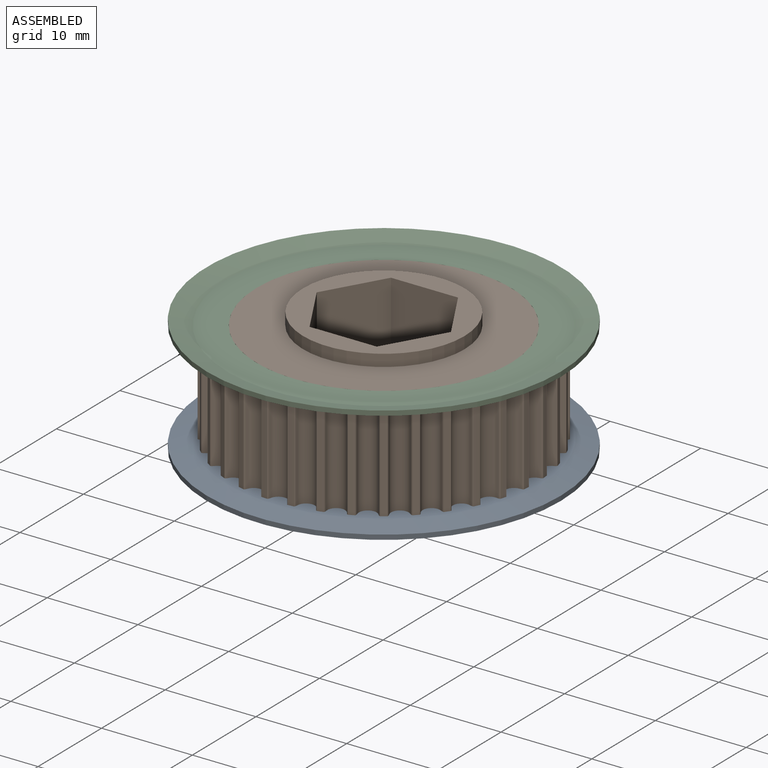
[diagram: assembled view]
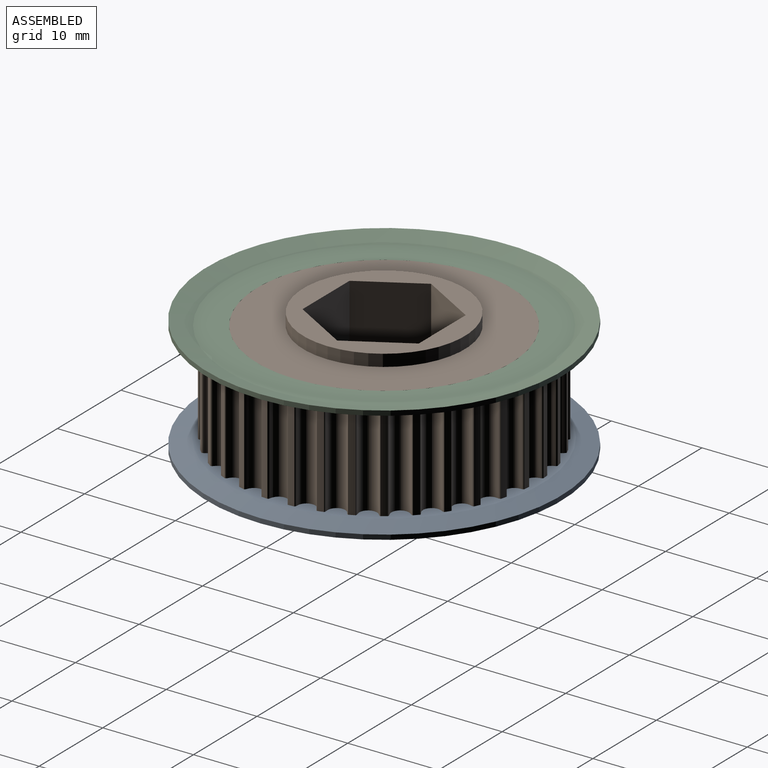
[diagram: assembled view, second angle]
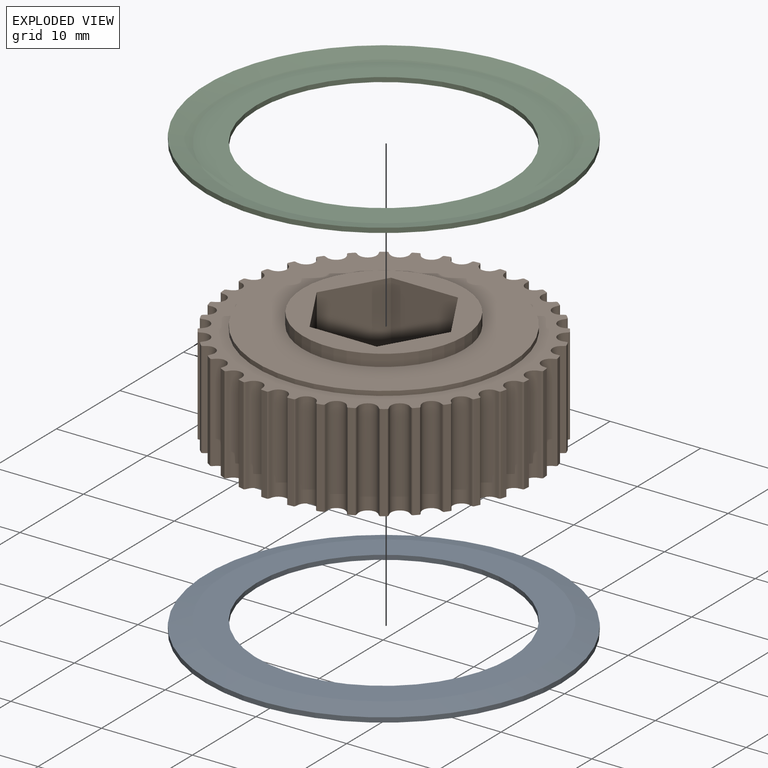
[diagram: exploded view]
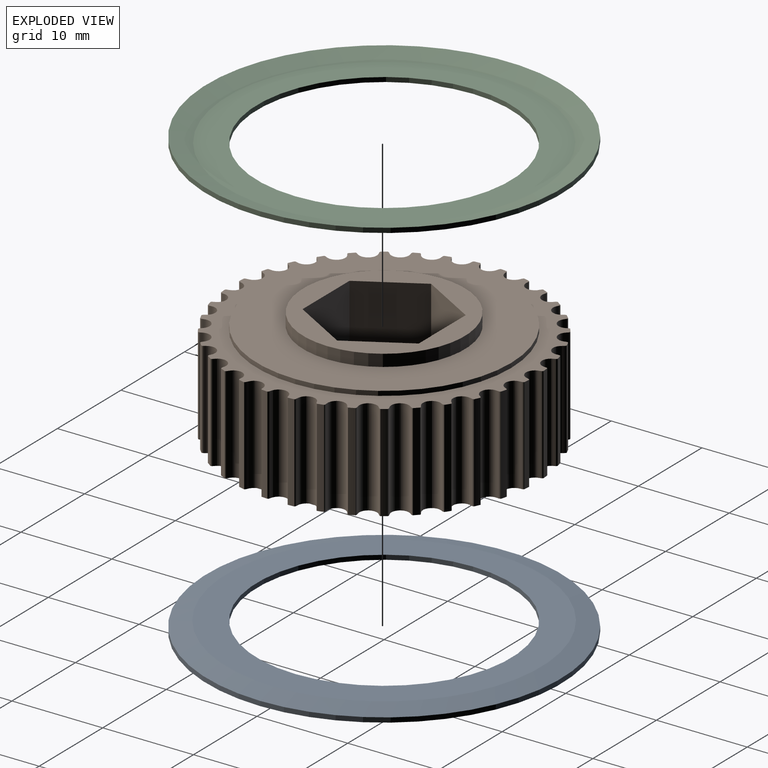
[diagram: exploded view, second angle]
ASSEMBLY  parts=3 mates=2
PART A: 6 faces, bbox 39x39x1.1 mm
  f0: cylinder r=14mm len=28mm, axis (0,0,1), area 44mm2, adj f4,f5
  f1: cone r=17.25mm half-angle=75.1deg, axis (0,0,-1), area 269mm2, adj f2,f4
  f2: cylinder r=19.5mm len=39mm, axis (0,0,1), area 63.5mm2, adj f1,f3
  f3: cone r=19.5mm half-angle=75.1deg, axis (0,0,-1), area 261.4mm2, adj f2,f5
  f4: plane 34.5x34.5mm, normal (0,0,-1), area 318.9mm2, adj f0,f1
  f5: plane 34.63x34.63mm, normal (0,0,1), area 326.3mm2, adj f0,f3
PART B: 232 faces, bbox 33.5x33.5x14.3 mm
  f0: cylinder r=8.89mm len=17.78mm, axis (0,0,-1), area 73.2mm2, adj f27,f231
  f1: cylinder r=8.89mm len=17.78mm, axis (0,0,1), area 73.2mm2, adj f28,f230
  f2: cylinder r=14mm len=28mm, axis (0,0,-1), area 44mm2, adj f229,f231
  f3: cylinder r=14mm len=28mm, axis (0,0,1), area 44mm2, adj f228,f230
  f4: cylinder r=0.3mm len=10.67mm, axis (0,0,-1), area 2.1mm2, adj f216,f217,f228,f229
  f5: cylinder r=0.3mm len=10.67mm, axis (0,0,-1), area 2.1mm2, adj f211,f212,f228,f229
  f6: cylinder r=0.3mm len=10.67mm, axis (0,0,-1), area 2.1mm2, adj f160,f161,f228,f229
  f7: cylinder r=0.3mm len=10.67mm, axis (0,0,-1), area 2.1mm2, adj f155,f156,f228,f229
  f8: cylinder r=0.3mm len=10.67mm, axis (0,0,-1), area 2.1mm2, adj f150,f151,f228,f229
  f9: cylinder r=0.3mm len=10.67mm, axis (0,0,-1), area 2.1mm2, adj f145,f146,f228,f229
  f10: cylinder r=0.97mm len=10.67mm, axis (0,0,-1), area 27.1mm2, adj f124,f125,f228,f229
  f11: cylinder r=0.97mm len=10.67mm, axis (0,0,-1), area 27.1mm2, adj f119,f120,f228,f229
  f12: cylinder r=0.97mm len=10.67mm, axis (0,0,-1), area 27.1mm2, adj f114,f115,f228,f229
  f13: cylinder r=0.97mm len=10.67mm, axis (0,0,-1), area 27.1mm2, adj f109,f110,f228,f229
  f14: cylinder r=0.97mm len=10.67mm, axis (0,0,-1), area 27.1mm2, adj f104,f105,f228,f229
  f15: cylinder r=0.97mm len=10.67mm, axis (0,0,-1), area 27.1mm2, adj f99,f100,f228,f229
  f16: cylinder r=0.97mm len=10.67mm, axis (0,0,-1), area 27.1mm2, adj f94,f95,f228,f229
  f17: cylinder r=0.97mm len=10.67mm, axis (0,0,-1), area 27.1mm2, adj f89,f90,f228,f229
  f18: cylinder r=0.97mm len=10.67mm, axis (0,0,-1), area 27.1mm2, adj f84,f85,f228,f229
  f19: cylinder r=0.97mm len=10.67mm, axis (0,0,-1), area 27.1mm2, adj f79,f80,f228,f229
  f20: cylinder r=0.97mm len=10.67mm, axis (0,0,-1), area 27.1mm2, adj f74,f75,f228,f229
  f21: cylinder r=0.97mm len=10.67mm, axis (0,0,-1), area 27.1mm2, adj f69,f70,f228,f229
  f22: cylinder r=0.97mm len=10.67mm, axis (0,0,-1), area 27.1mm2, adj f64,f65,f228,f229
  f23: cylinder r=0.97mm len=10.67mm, axis (0,0,-1), area 27.1mm2, adj f59,f60,f228,f229
  f24: cylinder r=0.97mm len=10.67mm, axis (0,0,-1), area 27.1mm2, adj f54,f55,f228,f229
  f25: cylinder r=0.3mm len=10.67mm, axis (0,0,-1), area 2.1mm2, adj f33,f34,f228,f229
  f26: cylinder r=0.3mm len=10.67mm, axis (0,0,-1), area 2.1mm2, adj f29,f221,f228,f229
  f27: plane 17.78x17.78mm, normal (0,0,-1), area 106.4mm2, adj f0,f222,f223,f224,f225,f226,f227
  f28: plane 17.78x17.78mm, normal (0,0,1), area 106.4mm2, adj f1,f222,f223,f224,f225,f226,f227
  f29: cylinder r=16.8mm len=10.67mm, axis (0,0,-1), area 7.3mm2, adj f26,f30,f228,f229
  f30: cylinder r=0.3mm len=10.67mm, axis (0,0,-1), area 2.1mm2, adj f29,f31,f228,f229
  f31: cylinder r=11.43mm len=10.67mm, axis (0,0,-1), area 2.8mm2, adj f30,f32,f228,f229
  f32: cylinder r=0.97mm len=10.67mm, axis (0,0,-1), area 27.1mm2, adj f31,f33,f228,f229
  f33: cylinder r=11.43mm len=10.67mm, axis (0,0,-1), area 2.8mm2, adj f25,f32,f228,f229
  f34: cylinder r=16.8mm len=10.67mm, axis (0,0,-1), area 7.3mm2, adj f25,f35,f228,f229
  f35: cylinder r=0.3mm len=10.67mm, axis (0,0,-1), area 2.1mm2, adj f34,f36,f228,f229
  f36: cylinder r=11.43mm len=10.67mm, axis (0,0,-1), area 2.8mm2, adj f35,f37,f228,f229
  f37: cylinder r=0.97mm len=10.67mm, axis (0,0,-1), area 27.1mm2, adj f36,f38,f228,f229
  f38: cylinder r=11.43mm len=10.67mm, axis (0,0,-1), area 2.8mm2, adj f37,f39,f228,f229
  f39: cylinder r=0.3mm len=10.67mm, axis (0,0,-1), area 2.1mm2, adj f38,f40,f228,f229
  f40: cylinder r=16.8mm len=10.67mm, axis (0,0,-1), area 7.3mm2, adj f39,f41,f228,f229
  f41: cylinder r=0.3mm len=10.67mm, axis (0,0,-1), area 2.1mm2, adj f40,f42,f228,f229
  f42: cylinder r=11.43mm len=10.67mm, axis (0,0,-1), area 2.8mm2, adj f41,f43,f228,f229
  f43: cylinder r=0.97mm len=10.67mm, axis (0,0,-1), area 27.1mm2, adj f42,f44,f228,f229
  f44: cylinder r=11.43mm len=10.67mm, axis (0,0,-1), area 2.8mm2, adj f43,f45,f228,f229
  f45: cylinder r=0.3mm len=10.67mm, axis (0,0,-1), area 2.1mm2, adj f44,f46,f228,f229
  f46: cylinder r=16.8mm len=10.67mm, axis (0,0,-1), area 7.3mm2, adj f45,f47,f228,f229
  f47: cylinder r=0.3mm len=10.67mm, axis (0,0,-1), area 2.1mm2, adj f46,f48,f228,f229
  f48: cylinder r=11.43mm len=10.67mm, axis (0,0,-1), area 2.8mm2, adj f47,f49,f228,f229
  f49: cylinder r=0.97mm len=10.67mm, axis (0,0,-1), area 27.1mm2, adj f48,f50,f228,f229
  f50: cylinder r=11.43mm len=10.67mm, axis (0,0,-1), area 2.8mm2, adj f49,f51,f228,f229
  f51: cylinder r=0.3mm len=10.67mm, axis (0,0,-1), area 2.1mm2, adj f50,f52,f228,f229
  f52: cylinder r=16.8mm len=10.67mm, axis (0,0,-1), area 7.3mm2, adj f51,f53,f228,f229
  f53: cylinder r=0.3mm len=10.67mm, axis (0,0,-1), area 2.1mm2, adj f52,f54,f228,f229
  f54: cylinder r=11.43mm len=10.67mm, axis (0,0,-1), area 2.8mm2, adj f24,f53,f228,f229
  f55: cylinder r=11.43mm len=10.67mm, axis (0,0,-1), area 2.8mm2, adj f24,f56,f228,f229
  f56: cylinder r=0.3mm len=10.67mm, axis (0,0,-1), area 2.1mm2, adj f55,f57,f228,f229
  f57: cylinder r=16.8mm len=10.67mm, axis (0,0,-1), area 7.3mm2, adj f56,f58,f228,f229
  f58: cylinder r=0.3mm len=10.67mm, axis (0,0,-1), area 2.1mm2, adj f57,f59,f228,f229
  f59: cylinder r=11.43mm len=10.67mm, axis (0,0,-1), area 2.8mm2, adj f23,f58,f228,f229
  f60: cylinder r=11.43mm len=10.67mm, axis (0,0,-1), area 2.8mm2, adj f23,f61,f228,f229
  f61: cylinder r=0.3mm len=10.67mm, axis (0,0,-1), area 2.1mm2, adj f60,f62,f228,f229
  f62: cylinder r=16.8mm len=10.67mm, axis (0,0,-1), area 7.3mm2, adj f61,f63,f228,f229
  f63: cylinder r=0.3mm len=10.67mm, axis (0,0,-1), area 2.1mm2, adj f62,f64,f228,f229
  f64: cylinder r=11.43mm len=10.67mm, axis (0,0,-1), area 2.8mm2, adj f22,f63,f228,f229
  f65: cylinder r=11.43mm len=10.67mm, axis (0,0,-1), area 2.8mm2, adj f22,f66,f228,f229
  f66: cylinder r=0.3mm len=10.67mm, axis (0,0,-1), area 2.1mm2, adj f65,f67,f228,f229
  f67: cylinder r=16.8mm len=10.67mm, axis (0,0,-1), area 7.3mm2, adj f66,f68,f228,f229
  f68: cylinder r=0.3mm len=10.67mm, axis (0,0,-1), area 2.1mm2, adj f67,f69,f228,f229
  f69: cylinder r=11.43mm len=10.67mm, axis (0,0,-1), area 2.8mm2, adj f21,f68,f228,f229
  f70: cylinder r=11.43mm len=10.67mm, axis (0,0,-1), area 2.8mm2, adj f21,f71,f228,f229
  f71: cylinder r=0.3mm len=10.67mm, axis (0,0,-1), area 2.1mm2, adj f70,f72,f228,f229
  f72: cylinder r=16.8mm len=10.67mm, axis (0,0,-1), area 7.3mm2, adj f71,f73,f228,f229
  f73: cylinder r=0.3mm len=10.67mm, axis (0,0,-1), area 2.1mm2, adj f72,f74,f228,f229
  f74: cylinder r=11.43mm len=10.67mm, axis (0,0,-1), area 2.8mm2, adj f20,f73,f228,f229
  f75: cylinder r=11.43mm len=10.67mm, axis (0,0,-1), area 2.8mm2, adj f20,f76,f228,f229
  f76: cylinder r=0.3mm len=10.67mm, axis (0,0,-1), area 2.1mm2, adj f75,f77,f228,f229
  f77: cylinder r=16.8mm len=10.67mm, axis (0,0,-1), area 7.3mm2, adj f76,f78,f228,f229
  f78: cylinder r=0.3mm len=10.67mm, axis (0,0,-1), area 2.1mm2, adj f77,f79,f228,f229
  f79: cylinder r=11.43mm len=10.67mm, axis (0,0,-1), area 2.8mm2, adj f19,f78,f228,f229
  f80: cylinder r=11.43mm len=10.67mm, axis (0,0,-1), area 2.8mm2, adj f19,f81,f228,f229
  f81: cylinder r=0.3mm len=10.67mm, axis (0,0,-1), area 2.1mm2, adj f80,f82,f228,f229
  f82: cylinder r=16.8mm len=10.67mm, axis (0,0,-1), area 7.3mm2, adj f81,f83,f228,f229
  f83: cylinder r=0.3mm len=10.67mm, axis (0,0,-1), area 2.1mm2, adj f82,f84,f228,f229
  f84: cylinder r=11.43mm len=10.67mm, axis (0,0,-1), area 2.8mm2, adj f18,f83,f228,f229
  f85: cylinder r=11.43mm len=10.67mm, axis (0,0,-1), area 2.8mm2, adj f18,f86,f228,f229
  f86: cylinder r=0.3mm len=10.67mm, axis (0,0,-1), area 2.1mm2, adj f85,f87,f228,f229
  f87: cylinder r=16.8mm len=10.67mm, axis (0,0,-1), area 7.3mm2, adj f86,f88,f228,f229
  f88: cylinder r=0.3mm len=10.67mm, axis (0,0,-1), area 2.1mm2, adj f87,f89,f228,f229
  f89: cylinder r=11.43mm len=10.67mm, axis (0,0,-1), area 2.8mm2, adj f17,f88,f228,f229
  f90: cylinder r=11.43mm len=10.67mm, axis (0,0,-1), area 2.8mm2, adj f17,f91,f228,f229
  f91: cylinder r=0.3mm len=10.67mm, axis (0,0,-1), area 2.1mm2, adj f90,f92,f228,f229
  f92: cylinder r=16.8mm len=10.67mm, axis (0,0,-1), area 7.3mm2, adj f91,f93,f228,f229
  f93: cylinder r=0.3mm len=10.67mm, axis (0,0,-1), area 2.1mm2, adj f92,f94,f228,f229
  f94: cylinder r=11.43mm len=10.67mm, axis (0,0,-1), area 2.8mm2, adj f16,f93,f228,f229
  f95: cylinder r=11.43mm len=10.67mm, axis (0,0,-1), area 2.8mm2, adj f16,f96,f228,f229
  f96: cylinder r=0.3mm len=10.67mm, axis (0,0,-1), area 2.1mm2, adj f95,f97,f228,f229
  f97: cylinder r=16.8mm len=10.67mm, axis (0,0,-1), area 7.3mm2, adj f96,f98,f228,f229
  f98: cylinder r=0.3mm len=10.67mm, axis (0,0,-1), area 2.1mm2, adj f97,f99,f228,f229
  f99: cylinder r=11.43mm len=10.67mm, axis (0,0,-1), area 2.8mm2, adj f15,f98,f228,f229
  f100: cylinder r=11.43mm len=10.67mm, axis (0,0,-1), area 2.8mm2, adj f15,f101,f228,f229
  f101: cylinder r=0.3mm len=10.67mm, axis (0,0,-1), area 2.1mm2, adj f100,f102,f228,f229
  f102: cylinder r=16.8mm len=10.67mm, axis (0,0,-1), area 7.3mm2, adj f101,f103,f228,f229
  f103: cylinder r=0.3mm len=10.67mm, axis (0,0,-1), area 2.1mm2, adj f102,f104,f228,f229
  f104: cylinder r=11.43mm len=10.67mm, axis (0,0,-1), area 2.8mm2, adj f14,f103,f228,f229
  f105: cylinder r=11.43mm len=10.67mm, axis (0,0,-1), area 2.8mm2, adj f14,f106,f228,f229
  f106: cylinder r=0.3mm len=10.67mm, axis (0,0,-1), area 2.1mm2, adj f105,f107,f228,f229
  f107: cylinder r=16.8mm len=10.67mm, axis (0,0,-1), area 7.3mm2, adj f106,f108,f228,f229
  f108: cylinder r=0.3mm len=10.67mm, axis (0,0,-1), area 2.1mm2, adj f107,f109,f228,f229
  f109: cylinder r=11.43mm len=10.67mm, axis (0,0,-1), area 2.8mm2, adj f13,f108,f228,f229
  f110: cylinder r=11.43mm len=10.67mm, axis (0,0,-1), area 2.8mm2, adj f13,f111,f228,f229
  f111: cylinder r=0.3mm len=10.67mm, axis (0,0,-1), area 2.1mm2, adj f110,f112,f228,f229
  f112: cylinder r=16.8mm len=10.67mm, axis (0,0,-1), area 7.3mm2, adj f111,f113,f228,f229
  f113: cylinder r=0.3mm len=10.67mm, axis (0,0,-1), area 2.1mm2, adj f112,f114,f228,f229
  f114: cylinder r=11.43mm len=10.67mm, axis (0,0,-1), area 2.8mm2, adj f12,f113,f228,f229
  f115: cylinder r=11.43mm len=10.67mm, axis (0,0,-1), area 2.8mm2, adj f12,f116,f228,f229
  f116: cylinder r=0.3mm len=10.67mm, axis (0,0,-1), area 2.1mm2, adj f115,f117,f228,f229
  f117: cylinder r=16.8mm len=10.67mm, axis (0,0,-1), area 7.3mm2, adj f116,f118,f228,f229
  f118: cylinder r=0.3mm len=10.67mm, axis (0,0,-1), area 2.1mm2, adj f117,f119,f228,f229
  f119: cylinder r=11.43mm len=10.67mm, axis (0,0,-1), area 2.8mm2, adj f11,f118,f228,f229
  f120: cylinder r=11.43mm len=10.67mm, axis (0,0,-1), area 2.8mm2, adj f11,f121,f228,f229
  f121: cylinder r=0.3mm len=10.67mm, axis (0,0,-1), area 2.1mm2, adj f120,f122,f228,f229
  f122: cylinder r=16.8mm len=10.67mm, axis (0,0,-1), area 7.3mm2, adj f121,f123,f228,f229
  f123: cylinder r=0.3mm len=10.67mm, axis (0,0,-1), area 2.1mm2, adj f122,f124,f228,f229
  f124: cylinder r=11.43mm len=10.67mm, axis (0,0,-1), area 2.8mm2, adj f10,f123,f228,f229
  f125: cylinder r=11.43mm len=10.67mm, axis (0,0,-1), area 2.8mm2, adj f10,f126,f228,f229
  f126: cylinder r=0.3mm len=10.67mm, axis (0,0,-1), area 2.1mm2, adj f125,f127,f228,f229
  f127: cylinder r=16.8mm len=10.67mm, axis (0,0,-1), area 7.3mm2, adj f126,f128,f228,f229
  f128: cylinder r=0.3mm len=10.67mm, axis (0,0,-1), area 2.1mm2, adj f127,f129,f228,f229
  f129: cylinder r=11.43mm len=10.67mm, axis (0,0,-1), area 2.8mm2, adj f128,f130,f228,f229
  f130: cylinder r=0.97mm len=10.67mm, axis (0,0,-1), area 27.1mm2, adj f129,f131,f228,f229
  f131: cylinder r=11.43mm len=10.67mm, axis (0,0,-1), area 2.8mm2, adj f130,f132,f228,f229
  f132: cylinder r=0.3mm len=10.67mm, axis (0,0,-1), area 2.1mm2, adj f131,f133,f228,f229
  f133: cylinder r=16.8mm len=10.67mm, axis (0,0,-1), area 7.3mm2, adj f132,f134,f228,f229
  f134: cylinder r=0.3mm len=10.67mm, axis (0,0,-1), area 2.1mm2, adj f133,f135,f228,f229
  f135: cylinder r=11.43mm len=10.67mm, axis (0,0,-1), area 2.8mm2, adj f134,f136,f228,f229
  f136: cylinder r=0.97mm len=10.67mm, axis (0,0,-1), area 27.1mm2, adj f135,f137,f228,f229
  f137: cylinder r=11.43mm len=10.67mm, axis (0,0,-1), area 2.8mm2, adj f136,f138,f228,f229
  f138: cylinder r=0.3mm len=10.67mm, axis (0,0,-1), area 2.1mm2, adj f137,f139,f228,f229
  f139: cylinder r=16.8mm len=10.67mm, axis (0,0,-1), area 7.3mm2, adj f138,f140,f228,f229
  f140: cylinder r=0.3mm len=10.67mm, axis (0,0,-1), area 2.1mm2, adj f139,f141,f228,f229
  f141: cylinder r=11.43mm len=10.67mm, axis (0,0,-1), area 2.8mm2, adj f140,f142,f228,f229
  f142: cylinder r=0.97mm len=10.67mm, axis (0,0,-1), area 27.1mm2, adj f141,f143,f228,f229
  f143: cylinder r=11.43mm len=10.67mm, axis (0,0,-1), area 2.8mm2, adj f142,f144,f228,f229
  f144: cylinder r=0.3mm len=10.67mm, axis (0,0,-1), area 2.1mm2, adj f143,f145,f228,f229
  f145: cylinder r=16.8mm len=10.67mm, axis (0,0,-1), area 7.3mm2, adj f9,f144,f228,f229
  f146: cylinder r=11.43mm len=10.67mm, axis (0,0,-1), area 2.8mm2, adj f9,f147,f228,f229
  f147: cylinder r=0.97mm len=10.67mm, axis (0,0,-1), area 27.1mm2, adj f146,f148,f228,f229
  f148: cylinder r=11.43mm len=10.67mm, axis (0,0,-1), area 2.8mm2, adj f147,f149,f228,f229
  f149: cylinder r=0.3mm len=10.67mm, axis (0,0,-1), area 2.1mm2, adj f148,f150,f228,f229
  f150: cylinder r=16.8mm len=10.67mm, axis (0,0,-1), area 7.3mm2, adj f8,f149,f228,f229
  f151: cylinder r=11.43mm len=10.67mm, axis (0,0,-1), area 2.8mm2, adj f8,f152,f228,f229
  f152: cylinder r=0.97mm len=10.67mm, axis (0,0,-1), area 27.1mm2, adj f151,f153,f228,f229
  f153: cylinder r=11.43mm len=10.67mm, axis (0,0,-1), area 2.8mm2, adj f152,f154,f228,f229
  f154: cylinder r=0.3mm len=10.67mm, axis (0,0,-1), area 2.1mm2, adj f153,f155,f228,f229
  f155: cylinder r=16.8mm len=10.67mm, axis (0,0,-1), area 7.3mm2, adj f7,f154,f228,f229
  f156: cylinder r=11.43mm len=10.67mm, axis (0,0,-1), area 2.8mm2, adj f7,f157,f228,f229
  f157: cylinder r=0.97mm len=10.67mm, axis (0,0,-1), area 27.1mm2, adj f156,f158,f228,f229
  f158: cylinder r=11.43mm len=10.67mm, axis (0,0,-1), area 2.8mm2, adj f157,f159,f228,f229
  f159: cylinder r=0.3mm len=10.67mm, axis (0,0,-1), area 2.1mm2, adj f158,f160,f228,f229
  f160: cylinder r=16.8mm len=10.67mm, axis (0,0,-1), area 7.3mm2, adj f6,f159,f228,f229
  f161: cylinder r=11.43mm len=10.67mm, axis (0,0,-1), area 2.8mm2, adj f6,f162,f228,f229
  f162: cylinder r=0.97mm len=10.67mm, axis (0,0,-1), area 27.1mm2, adj f161,f163,f228,f229
  f163: cylinder r=11.43mm len=10.67mm, axis (0,0,-1), area 2.8mm2, adj f162,f164,f228,f229
  f164: cylinder r=0.3mm len=10.67mm, axis (0,0,-1), area 2.1mm2, adj f163,f165,f228,f229
  f165: cylinder r=16.8mm len=10.67mm, axis (0,0,-1), area 7.3mm2, adj f164,f166,f228,f229
  f166: cylinder r=0.3mm len=10.67mm, axis (0,0,-1), area 2.1mm2, adj f165,f167,f228,f229
  f167: cylinder r=11.43mm len=10.67mm, axis (0,0,-1), area 2.8mm2, adj f166,f168,f228,f229
  f168: cylinder r=0.97mm len=10.67mm, axis (0,0,-1), area 27.1mm2, adj f167,f169,f228,f229
  f169: cylinder r=11.43mm len=10.67mm, axis (0,0,-1), area 2.8mm2, adj f168,f170,f228,f229
  f170: cylinder r=0.3mm len=10.67mm, axis (0,0,-1), area 2.1mm2, adj f169,f171,f228,f229
  f171: cylinder r=16.8mm len=10.67mm, axis (0,0,-1), area 7.3mm2, adj f170,f172,f228,f229
  f172: cylinder r=0.3mm len=10.67mm, axis (0,0,-1), area 2.1mm2, adj f171,f173,f228,f229
  f173: cylinder r=11.43mm len=10.67mm, axis (0,0,-1), area 2.8mm2, adj f172,f174,f228,f229
  f174: cylinder r=0.97mm len=10.67mm, axis (0,0,-1), area 27.1mm2, adj f173,f175,f228,f229
  f175: cylinder r=11.43mm len=10.67mm, axis (0,0,-1), area 2.8mm2, adj f174,f176,f228,f229
  f176: cylinder r=0.3mm len=10.67mm, axis (0,0,-1), area 2.1mm2, adj f175,f177,f228,f229
  f177: cylinder r=16.8mm len=10.67mm, axis (0,0,-1), area 7.3mm2, adj f176,f178,f228,f229
  f178: cylinder r=0.3mm len=10.67mm, axis (0,0,-1), area 2.1mm2, adj f177,f179,f228,f229
  f179: cylinder r=11.43mm len=10.67mm, axis (0,0,-1), area 2.8mm2, adj f178,f180,f228,f229
  f180: cylinder r=0.97mm len=10.67mm, axis (0,0,-1), area 27.1mm2, adj f179,f181,f228,f229
  f181: cylinder r=11.43mm len=10.67mm, axis (0,0,-1), area 2.8mm2, adj f180,f182,f228,f229
  f182: cylinder r=0.3mm len=10.67mm, axis (0,0,-1), area 2.1mm2, adj f181,f183,f228,f229
  f183: cylinder r=16.8mm len=10.67mm, axis (0,0,-1), area 7.3mm2, adj f182,f184,f228,f229
  f184: cylinder r=0.3mm len=10.67mm, axis (0,0,-1), area 2.1mm2, adj f183,f185,f228,f229
  f185: cylinder r=11.43mm len=10.67mm, axis (0,0,-1), area 2.8mm2, adj f184,f186,f228,f229
  f186: cylinder r=0.97mm len=10.67mm, axis (0,0,-1), area 27.1mm2, adj f185,f187,f228,f229
  f187: cylinder r=11.43mm len=10.67mm, axis (0,0,-1), area 2.8mm2, adj f186,f188,f228,f229
  f188: cylinder r=0.3mm len=10.67mm, axis (0,0,-1), area 2.1mm2, adj f187,f189,f228,f229
  f189: cylinder r=16.8mm len=10.67mm, axis (0,0,-1), area 7.3mm2, adj f188,f190,f228,f229
  f190: cylinder r=0.3mm len=10.67mm, axis (0,0,-1), area 2.1mm2, adj f189,f191,f228,f229
  f191: cylinder r=11.43mm len=10.67mm, axis (0,0,-1), area 2.8mm2, adj f190,f192,f228,f229
  f192: cylinder r=0.97mm len=10.67mm, axis (0,0,-1), area 27.1mm2, adj f191,f193,f228,f229
  f193: cylinder r=11.43mm len=10.67mm, axis (0,0,-1), area 2.8mm2, adj f192,f194,f228,f229
  f194: cylinder r=0.3mm len=10.67mm, axis (0,0,-1), area 2.1mm2, adj f193,f195,f228,f229
  f195: cylinder r=16.8mm len=10.67mm, axis (0,0,-1), area 7.3mm2, adj f194,f196,f228,f229
  f196: cylinder r=0.3mm len=10.67mm, axis (0,0,-1), area 2.1mm2, adj f195,f197,f228,f229
  f197: cylinder r=11.43mm len=10.67mm, axis (0,0,-1), area 2.8mm2, adj f196,f198,f228,f229
  f198: cylinder r=0.97mm len=10.67mm, axis (0,0,-1), area 27.1mm2, adj f197,f199,f228,f229
  f199: cylinder r=11.43mm len=10.67mm, axis (0,0,-1), area 2.8mm2, adj f198,f200,f228,f229
  f200: cylinder r=0.3mm len=10.67mm, axis (0,0,-1), area 2.1mm2, adj f199,f201,f228,f229
  f201: cylinder r=16.8mm len=10.67mm, axis (0,0,-1), area 7.3mm2, adj f200,f202,f228,f229
  f202: cylinder r=0.3mm len=10.67mm, axis (0,0,-1), area 2.1mm2, adj f201,f203,f228,f229
  f203: cylinder r=11.43mm len=10.67mm, axis (0,0,-1), area 2.8mm2, adj f202,f204,f228,f229
  f204: cylinder r=0.97mm len=10.67mm, axis (0,0,-1), area 27.1mm2, adj f203,f205,f228,f229
  f205: cylinder r=11.43mm len=10.67mm, axis (0,0,-1), area 2.8mm2, adj f204,f206,f228,f229
  f206: cylinder r=0.3mm len=10.67mm, axis (0,0,-1), area 2.1mm2, adj f205,f207,f228,f229
  f207: cylinder r=16.8mm len=10.67mm, axis (0,0,-1), area 7.3mm2, adj f206,f208,f228,f229
  f208: cylinder r=0.3mm len=10.67mm, axis (0,0,-1), area 2.1mm2, adj f207,f209,f228,f229
  f209: cylinder r=11.43mm len=10.67mm, axis (0,0,-1), area 2.8mm2, adj f208,f210,f228,f229
  f210: cylinder r=0.97mm len=10.67mm, axis (0,0,-1), area 27.1mm2, adj f209,f211,f228,f229
  f211: cylinder r=11.43mm len=10.67mm, axis (0,0,-1), area 2.8mm2, adj f5,f210,f228,f229
  f212: cylinder r=16.8mm len=10.67mm, axis (0,0,-1), area 7.3mm2, adj f5,f213,f228,f229
  f213: cylinder r=0.3mm len=10.67mm, axis (0,0,-1), area 2.1mm2, adj f212,f214,f228,f229
  f214: cylinder r=11.43mm len=10.67mm, axis (0,0,-1), area 2.8mm2, adj f213,f215,f228,f229
  f215: cylinder r=0.97mm len=10.67mm, axis (0,0,-1), area 27.1mm2, adj f214,f216,f228,f229
  f216: cylinder r=11.43mm len=10.67mm, axis (0,0,-1), area 2.8mm2, adj f4,f215,f228,f229
  f217: cylinder r=16.8mm len=10.67mm, axis (0,0,-1), area 7.3mm2, adj f4,f218,f228,f229
  f218: cylinder r=0.3mm len=10.67mm, axis (0,0,-1), area 2.1mm2, adj f217,f219,f228,f229
  f219: cylinder r=11.43mm len=10.67mm, axis (0,0,-1), area 2.8mm2, adj f218,f220,f228,f229
  f220: cylinder r=0.97mm len=10.67mm, axis (0,0,-1), area 27.1mm2, adj f219,f221,f228,f229
  f221: cylinder r=11.43mm len=10.67mm, axis (0,0,-1), area 2.8mm2, adj f26,f220,f228,f229
  f222: plane 14.29x6.4mm, normal (-0.87,0.5,0), area 105.6mm2, adj f27,f28,f223,f227
  f223: plane 14.29x7.39mm, normal (0,1,0), area 105.6mm2, adj f27,f28,f222,f224
  f224: plane 14.29x6.4mm, normal (0.87,0.5,0), area 105.6mm2, adj f27,f28,f223,f225
  f225: plane 14.29x6.4mm, normal (0.87,-0.5,0), area 105.6mm2, adj f27,f28,f224,f226
  f226: plane 14.29x7.39mm, normal (0,-1,0), area 105.6mm2, adj f27,f28,f225,f227
  f227: plane 14.29x6.4mm, normal (-0.87,-0.5,0), area 105.6mm2, adj f27,f28,f222,f226
  f228: plane 33.53x33.53mm, normal (0,0,1), area 203.5mm2, adj f3,f4,f5,f6,f7,f8,f9,f10
  f229: plane 33.53x33.53mm, normal (0,0,-1), area 203.5mm2, adj f2,f4,f5,f6,f7,f8,f9,f10
  f230: plane 28x28mm, normal (0,0,1), area 367.5mm2, adj f1,f3
  f231: plane 28x28mm, normal (0,0,-1), area 367.5mm2, adj f0,f2
PART C: 6 faces, bbox 39x39x1.1 mm
  f0: cone r=19.5mm half-angle=75.1deg, axis (0,0,1), area 269mm2, adj f1,f5
  f1: cylinder r=19.5mm len=39mm, axis (0,0,1), area 63.5mm2, adj f0,f2
  f2: cone r=17.32mm half-angle=75.1deg, axis (0,0,1), area 261.4mm2, adj f1,f4
  f3: cylinder r=14mm len=28mm, axis (0,0,1), area 44mm2, adj f4,f5
  f4: plane 34.63x34.63mm, normal (0,0,-1), area 326.3mm2, adj f2,f3
  f5: plane 34.5x34.5mm, normal (0,0,1), area 318.9mm2, adj f0,f3
PLACE A t=(0.06,0.04,0.02)mm
PLACE B t=(0.06,0.04,0.02)mm
PLACE C t=(0.06,0.04,0.02)mm
MATE fastened A.f0 <-> B.f0  axis (0,0,1) through (0.06,0.04,-5.57)mm
MATE fastened C.f0 <-> B.f0  axis (0,0,1) through (0.06,0.04,5.6)mm
